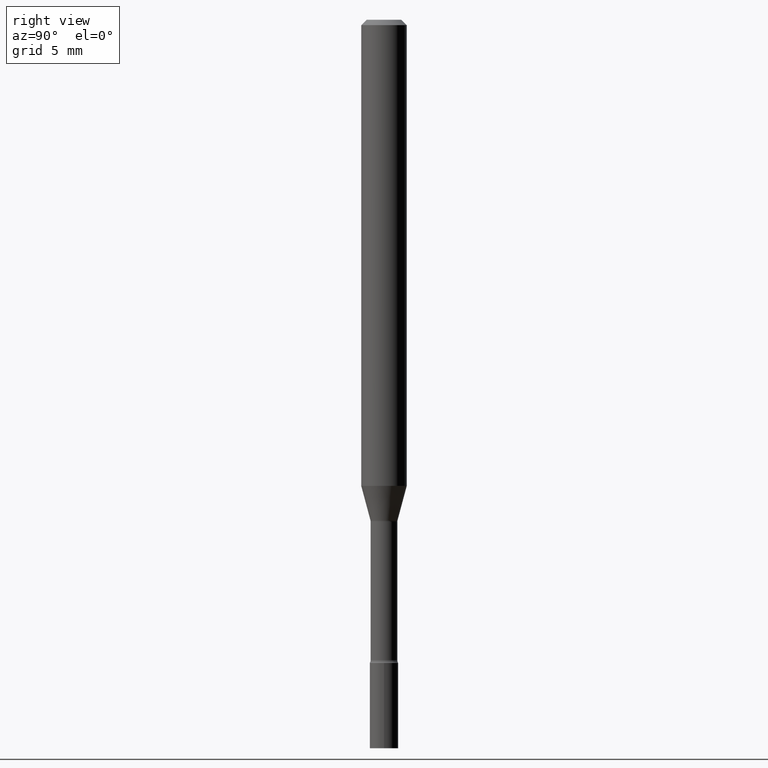
[diagram: clean part render]
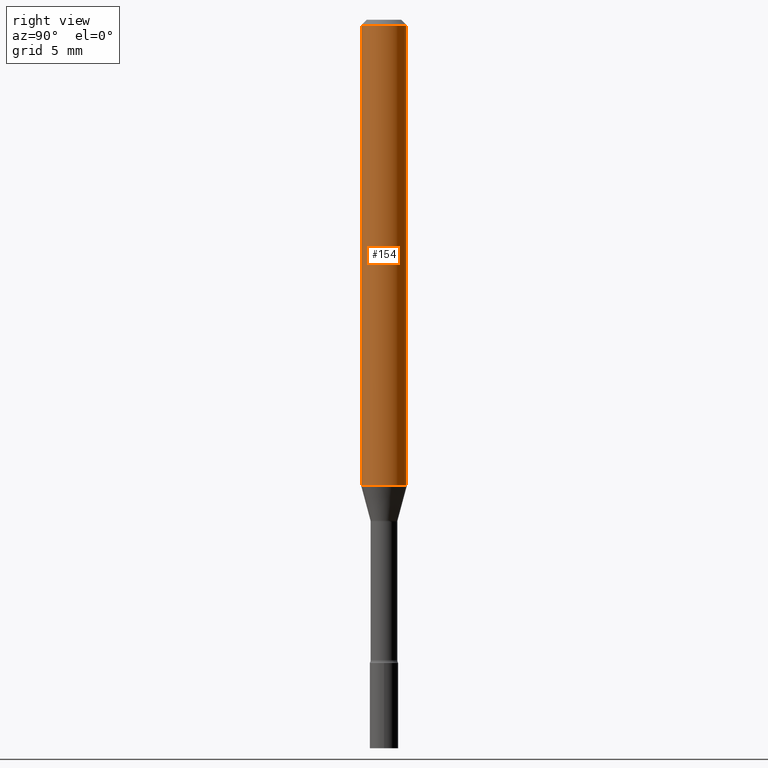
[diagram: same view with one face highlighted and labeled with its STEP entity id]
A machine part, right view. The second image highlights one B-rep face of the part: STEP entity #154.
In plain terms, the highlighted cylindrical surface (edge-blend (fillet) strip) has radius 1.5875 mm, axis along (-0, 0, 1).
Its self-contained STEP definition (entity closure, byte-faithful):
#2 = CARTESIAN_POINT ( 'NONE',  ( -4.364351673553912750E-16, -0.06250000000000005551, -0.01499999999999981209 ) ) ;
#9 = CARTESIAN_POINT ( 'NONE',  ( 3.129010783639058440E-29, -4.467487711346049103E-15, -1.279526486624344761 ) ) ;
#21 = VERTEX_POINT ( 'NONE', #2 ) ;
#28 = CARTESIAN_POINT ( 'NONE',  ( -4.364351673553916201E-16, -0.06250000000000000000, 2.182197749542198527E-16 ) ) ;
#34 = EDGE_CURVE ( 'NONE', #371, #470, #88, .T. ) ;
#46 = CIRCLE ( 'NONE', #341, 0.06250000000000000000 ) ;
#63 = CARTESIAN_POINT ( 'NONE',  ( 0.000000000000000000, 0.000000000000000000, 0.000000000000000000 ) ) ;
#88 = LINE ( 'NONE', #249, #448 ) ;
#94 = CARTESIAN_POINT ( 'NONE',  ( 3.668166485432484237E-31, -5.237274598901286943E-17, -0.01500000000000003067 ) ) ;
#96 = FACE_OUTER_BOUND ( 'NONE', #119, .T. ) ;
#110 = DIRECTION ( 'NONE',  ( -2.445444323621651242E-29, 3.491516399267517644E-15, 1.000000000000000000 ) ) ;
#119 = EDGE_LOOP ( 'NONE', ( #361, #443, #273, #211 ) ) ;
#122 = EDGE_CURVE ( 'NONE', #402, #371, #214, .T. ) ;
#140 = CARTESIAN_POINT ( 'NONE',  ( 4.440892098500935790E-16, 0.06249999999999550360, -1.279526486624345205 ) ) ;
#154 = ADVANCED_FACE ( 'NONE', ( #96 ), #185, .T. ) ;
#162 = DIRECTION ( 'NONE',  ( -6.982962677686265922E-15, -1.000000000000000000, 3.483106191921935554E-15 ) ) ;
#174 = DIRECTION ( 'NONE',  ( -2.445444323621651242E-29, 3.491516399267517644E-15, 1.000000000000000000 ) ) ;
#181 = VECTOR ( 'NONE', #110, 39.37007874015748143 ) ;
#185 = CYLINDRICAL_SURFACE ( 'NONE', #280, 0.06250000000000000000 ) ;
#211 = ORIENTED_EDGE ( 'NONE', *, *, #305, .F. ) ;
#214 = CIRCLE ( 'NONE', #255, 0.06250000000000000000 ) ;
#245 = DIRECTION ( 'NONE',  ( -2.445444323621651242E-29, 3.491516399267517644E-15, 1.000000000000000000 ) ) ;
#249 = CARTESIAN_POINT ( 'NONE',  ( 4.440892098500625669E-16, 0.06250000000000000000, -2.182197749542198527E-16 ) ) ;
#250 = DIRECTION ( 'NONE',  ( -2.445444323621651242E-29, 3.491516399267517644E-15, 1.000000000000000000 ) ) ;
#255 = AXIS2_PLACEMENT_3D ( 'NONE', #9, #174, #380 ) ;
#273 = ORIENTED_EDGE ( 'NONE', *, *, #478, .F. ) ;
#280 = AXIS2_PLACEMENT_3D ( 'NONE', #63, #430, #398 ) ;
#305 = EDGE_CURVE ( 'NONE', #402, #21, #465, .T. ) ;
#341 = AXIS2_PLACEMENT_3D ( 'NONE', #94, #250, #162 ) ;
#361 = ORIENTED_EDGE ( 'NONE', *, *, #122, .T. ) ;
#371 = VERTEX_POINT ( 'NONE', #140 ) ;
#380 = DIRECTION ( 'NONE',  ( -6.982962677686265922E-15, -1.000000000000000000, 4.370956789862821150E-15 ) ) ;
#393 = CARTESIAN_POINT ( 'NONE',  ( -4.364351673553606080E-16, -0.06250000000000449640, -1.279526486624344539 ) ) ;
#398 = DIRECTION ( 'NONE',  ( -6.982962677686265922E-15, -1.000000000000000000, 3.491516399267517644E-15 ) ) ;
#402 = VERTEX_POINT ( 'NONE', #393 ) ;
#430 = DIRECTION ( 'NONE',  ( -2.445444323621651242E-29, 3.491516399267517644E-15, 1.000000000000000000 ) ) ;
#443 = ORIENTED_EDGE ( 'NONE', *, *, #34, .T. ) ;
#448 = VECTOR ( 'NONE', #245, 39.37007874015748143 ) ;
#465 = LINE ( 'NONE', #28, #181 ) ;
#470 = VERTEX_POINT ( 'NONE', #513 ) ;
#478 = EDGE_CURVE ( 'NONE', #21, #470, #46, .T. ) ;
#513 = CARTESIAN_POINT ( 'NONE',  ( 4.440892098500940720E-16, 0.06249999999999995143, -0.01500000000000024751 ) ) ;